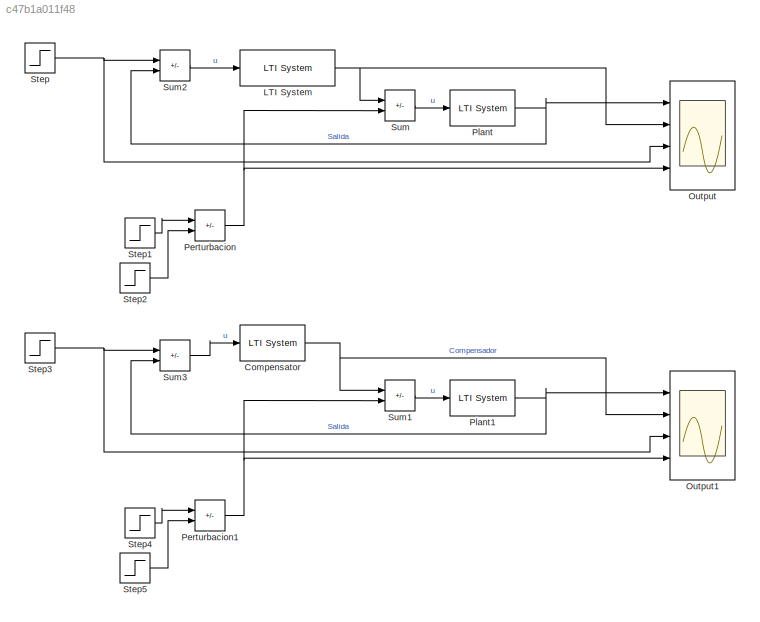
MODEL slx_c47b1a011f48
KIND model
CONFIG AbsTol = auto
CONFIG EnableMultiTasking = off
CONFIG FixedStep = auto
CONFIG MaxStep = auto
CONFIG MinStep = auto
CONFIG RelTol = 1e-3
CONFIG SampleTimeConstraint = Unconstrained
CONFIG SolverName = VariableStepAuto
CONFIG StartTime = 0.0
CONFIG StopTime = 30
BLOCK [Reference] Compensator  REF=cstblocks/LTI System
  Ports = [1, 1]
  SourceBlock = cstblocks/LTI System
  SourceProductBaseCode = CT
  SourceType = LTI Block
BLOCK [Reference] LTI System  REF=cstblocks/LTI System
  Ports = [1, 1]
  SourceBlock = cstblocks/LTI System
  SourceProductBaseCode = CT
  SourceType = LTI Block
BLOCK [Scope] Output
  Floating = off
  NumInputPorts = 4
  Ports = [4]
  ScopeSpecificationString = Simulink.scopes.TimeScopeBlockCfg('CurrentConfiguration', extmgr.ConfigurationSet(extmgr.Configuration('Core','General UI',true),extmgr.Configuration('Core','Source UI',true),extmgr.Configuration('Sources','WiredSimulink',true),extmgr.Configuration('Visuals','Time Domain',true,'SerializedDisplays',{struct('MinYLimReal','-0.29596','MaxYLimReal','2.04119','YLabelReal','','MinYLimMag','0.00000','MaxY...<+1907ch>
BLOCK [Scope] Output1
  Floating = off
  NumInputPorts = 4
  Ports = [4]
  ScopeSpecificationString = Simulink.scopes.TimeScopeBlockCfg('CurrentConfiguration', extmgr.ConfigurationSet(extmgr.Configuration('Core','General UI',true),extmgr.Configuration('Core','Source UI',true),extmgr.Configuration('Sources','WiredSimulink',true,'DataLoggingVariableName','ScopeData1'),extmgr.Configuration('Visuals','Time Domain',true,'SerializedDisplays',{struct('MinYLimReal','-0.075','MaxYLimReal','0.675','YLabelRe...<+1748ch>
BLOCK [Sum] Perturbacion
  IconShape = rectangular
  Inputs = +-
  Ports = [2, 1]
BLOCK [Sum] Perturbacion1
  IconShape = rectangular
  Inputs = +-
  Ports = [2, 1]
BLOCK [Reference] Plant  REF=cstblocks/LTI System
  Ports = [1, 1]
  SourceBlock = cstblocks/LTI System
  SourceProductBaseCode = CT
  SourceType = LTI Block
BLOCK [Reference] Plant1  REF=cstblocks/LTI System
  Ports = [1, 1]
  SourceBlock = cstblocks/LTI System
  SourceProductBaseCode = CT
  SourceType = LTI Block
BLOCK [Step] Step
  After = 0.6
  SampleTime = 0
BLOCK [Step] Step1
  After = 0.05
  SampleTime = 0
  Time = 8
BLOCK [Step] Step2
  After = 0.05
  SampleTime = 0
  Time = 15
BLOCK [Step] Step3
  After = 0.6
  SampleTime = 0
BLOCK [Step] Step4
  After = 0.05
  SampleTime = 0
  Time = 8
BLOCK [Step] Step5
  After = 0.05
  SampleTime = 0
  Time = 15
BLOCK [Sum] Sum
  IconShape = rectangular
  Inputs = +-
  Ports = [2, 1]
BLOCK [Sum] Sum1
  IconShape = rectangular
  Inputs = +-
  Ports = [2, 1]
BLOCK [Sum] Sum2
  IconShape = rectangular
  Inputs = +-
  Ports = [2, 1]
BLOCK [Sum] Sum3
  IconShape = rectangular
  Inputs = +-
  Ports = [2, 1]
NET Compensator:1 -> Output1:2, Sum1:1
NET LTI System:1 -> Output:2, Sum:1
NET Perturbacion1:1 -> Output1:4, Sum1:2
NET Perturbacion:1 -> Output:4, Sum:2
NET Plant1:1 -> Output1:1, Sum3:2
NET Plant:1 -> Output:1, Sum2:2
LINE Step1:1 -> Perturbacion:1
LINE Step2:1 -> Perturbacion:2
NET Step3:1 -> Output1:3, Sum3:1
LINE Step4:1 -> Perturbacion1:1
LINE Step5:1 -> Perturbacion1:2
NET Step:1 -> Output:3, Sum2:1
LINE Sum1:1 -> Plant1:1
LINE Sum2:1 -> LTI System:1
LINE Sum3:1 -> Compensator:1
LINE Sum:1 -> Plant:1
note: NET lines group one-source signal fan-out (src -> all destinations, sorted); 1:1 wires keep LINE
